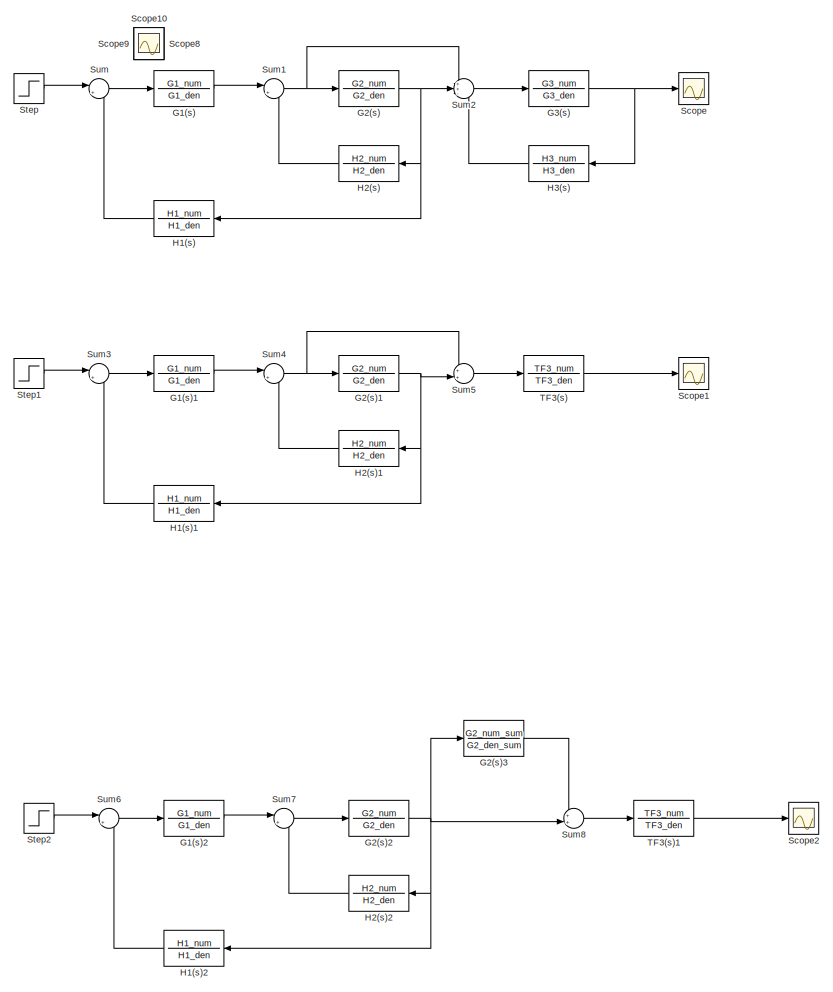
[diagram: root canvas - part 1/2, full width, top band]
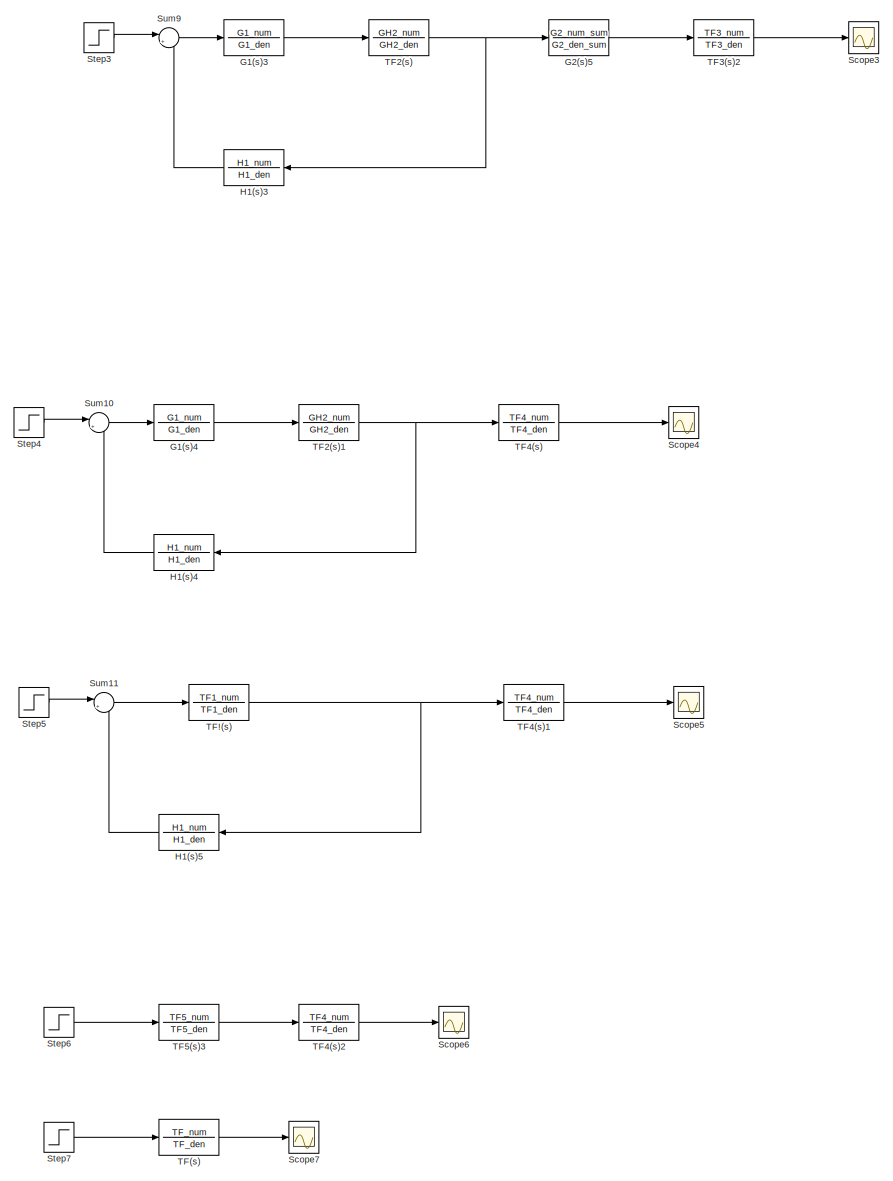
[diagram: root canvas - part 2/2, full width, bottom band]
MODEL slx_843ef36e812e
KIND model
CONFIG AbsTol = auto
CONFIG EnableMultiTasking = off
CONFIG FixedStep = auto
CONFIG MaxStep = auto
CONFIG MinStep = auto
CONFIG RelTol = 1e-3
CONFIG SampleTimeConstraint = Unconstrained
CONFIG SolverName = VariableStepAuto
CONFIG StartTime = 0.0
CONFIG StopTime = 20.0
BLOCK [TransferFcn] G1(s)
  Denominator = G1_den
  Numerator = G1_num
BLOCK [TransferFcn] G1(s)1
  Denominator = G1_den
  Numerator = G1_num
BLOCK [TransferFcn] G1(s)2
  Denominator = G1_den
  Numerator = G1_num
BLOCK [TransferFcn] G1(s)3
  Denominator = G1_den
  Numerator = G1_num
BLOCK [TransferFcn] G1(s)4
  Denominator = G1_den
  Numerator = G1_num
BLOCK [TransferFcn] G2(s)
  Denominator = G2_den
  Numerator = G2_num
BLOCK [TransferFcn] G2(s)1
  Denominator = G2_den
  Numerator = G2_num
BLOCK [TransferFcn] G2(s)2
  Denominator = G2_den
  Numerator = G2_num
BLOCK [TransferFcn] G2(s)3
  Denominator = G2_den_sum
  Numerator = G2_num_sum
BLOCK [TransferFcn] G2(s)5
  Denominator = G2_den_sum
  Numerator = G2_num_sum
BLOCK [TransferFcn] G3(s)
  Denominator = G3_den
  Numerator = G3_num
BLOCK [TransferFcn] H1(s)
  Denominator = H1_den
  Numerator = H1_num
BLOCK [TransferFcn] H1(s)1
  Denominator = H1_den
  Numerator = H1_num
BLOCK [TransferFcn] H1(s)2
  Denominator = H1_den
  Numerator = H1_num
BLOCK [TransferFcn] H1(s)3
  Denominator = H1_den
  Numerator = H1_num
BLOCK [TransferFcn] H1(s)4
  Denominator = H1_den
  Numerator = H1_num
BLOCK [TransferFcn] H1(s)5
  Denominator = H1_den
  Numerator = H1_num
BLOCK [TransferFcn] H2(s)
  Denominator = H2_den
  Numerator = H2_num
BLOCK [TransferFcn] H2(s)1
  Denominator = H2_den
  Numerator = H2_num
BLOCK [TransferFcn] H2(s)2
  Denominator = H2_den
  Numerator = H2_num
BLOCK [TransferFcn] H3(s)
  Denominator = H3_den
  Numerator = H3_num
BLOCK [Scope] Scope
  Floating = off
  NumInputPorts = 1
  ScopeSpecificationString = Simulink.scopes.TimeScopeBlockCfg('CurrentConfiguration', extmgr.ConfigurationSet(extmgr.Configuration('Core','General UI',true),extmgr.Configuration('Core','Source UI',true),extmgr.Configuration('Sources','WiredSimulink',true),extmgr.Configuration('Visuals','Time Domain',true),extmgr.Configuration('Tools','Plot Navigation',true),extmgr.Configuration('Tools','Measurements',true)),'Version','2024a'...<+1ch>
BLOCK [Scope] Scope1
  Floating = off
  NumInputPorts = 1
  ScopeSpecificationString = Simulink.scopes.TimeScopeBlockCfg('CurrentConfiguration', extmgr.ConfigurationSet(extmgr.Configuration('Core','General UI',true),extmgr.Configuration('Core','Source UI',true),extmgr.Configuration('Sources','WiredSimulink',true,'DataLoggingVariableName','ScopeData1'),extmgr.Configuration('Visuals','Time Domain',true),extmgr.Configuration('Tools','Plot Navigation',true),extmgr.Configuration('Tools',...<+40ch>
BLOCK [Scope] Scope10
  Floating = off
  IOType = viewer
  NumInputPorts = 1
  ScopeSpecificationString = Simulink.scopes.TimeScopeBlockCfg('CurrentConfiguration', extmgr.ConfigurationSet(extmgr.Configuration('Core','General UI',true),extmgr.Configuration('Core','Source UI',true),extmgr.Configuration('Sources','WiredSimulink',true,'DataLoggingVariableName','ScopeData10'),extmgr.Configuration('Visuals','Time Domain',true,'SerializedDisplays',{struct('MinYLimReal','-537960889.14463','MaxYLimReal','59773...<+1543ch>
BLOCK [Scope] Scope2
  Floating = off
  NumInputPorts = 1
  ScopeSpecificationString = Simulink.scopes.TimeScopeBlockCfg('CurrentConfiguration', extmgr.ConfigurationSet(extmgr.Configuration('Core','General UI',true),extmgr.Configuration('Core','Source UI',true),extmgr.Configuration('Sources','WiredSimulink',true,'DataLoggingVariableName','ScopeData2'),extmgr.Configuration('Visuals','Time Domain',true),extmgr.Configuration('Tools','Plot Navigation',true),extmgr.Configuration('Tools',...<+40ch>
BLOCK [Scope] Scope3
  Floating = off
  NumInputPorts = 1
  ScopeSpecificationString = Simulink.scopes.TimeScopeBlockCfg('CurrentConfiguration', extmgr.ConfigurationSet(extmgr.Configuration('Core','General UI',true),extmgr.Configuration('Core','Source UI',true),extmgr.Configuration('Sources','WiredSimulink',true,'DataLoggingVariableName','ScopeData3'),extmgr.Configuration('Visuals','Time Domain',true),extmgr.Configuration('Tools','Plot Navigation',true),extmgr.Configuration('Tools',...<+40ch>
BLOCK [Scope] Scope4
  Floating = off
  NumInputPorts = 1
  ScopeSpecificationString = Simulink.scopes.TimeScopeBlockCfg('CurrentConfiguration', extmgr.ConfigurationSet(extmgr.Configuration('Core','General UI',true),extmgr.Configuration('Core','Source UI',true),extmgr.Configuration('Sources','WiredSimulink',true,'DataLoggingVariableName','ScopeData4'),extmgr.Configuration('Visuals','Time Domain',true),extmgr.Configuration('Tools','Plot Navigation',true),extmgr.Configuration('Tools',...<+40ch>
BLOCK [Scope] Scope5
  Floating = off
  NumInputPorts = 1
  ScopeSpecificationString = Simulink.scopes.TimeScopeBlockCfg('CurrentConfiguration', extmgr.ConfigurationSet(extmgr.Configuration('Core','General UI',true),extmgr.Configuration('Core','Source UI',true),extmgr.Configuration('Sources','WiredSimulink',true,'DataLoggingVariableName','ScopeData5'),extmgr.Configuration('Visuals','Time Domain',true),extmgr.Configuration('Tools','Plot Navigation',true),extmgr.Configuration('Tools',...<+40ch>
BLOCK [Scope] Scope6
  Floating = off
  NumInputPorts = 1
  ScopeSpecificationString = Simulink.scopes.TimeScopeBlockCfg('CurrentConfiguration', extmgr.ConfigurationSet(extmgr.Configuration('Core','General UI',true),extmgr.Configuration('Core','Source UI',true),extmgr.Configuration('Sources','WiredSimulink',true,'DataLoggingVariableName','ScopeData6'),extmgr.Configuration('Visuals','Time Domain',true),extmgr.Configuration('Tools','Plot Navigation',true),extmgr.Configuration('Tools',...<+40ch>
BLOCK [Scope] Scope7
  Floating = off
  NumInputPorts = 1
  ScopeSpecificationString = Simulink.scopes.TimeScopeBlockCfg('CurrentConfiguration', extmgr.ConfigurationSet(extmgr.Configuration('Core','General UI',true),extmgr.Configuration('Core','Source UI',true),extmgr.Configuration('Sources','WiredSimulink',true,'DataLoggingVariableName','ScopeData7'),extmgr.Configuration('Visuals','Time Domain',true),extmgr.Configuration('Tools','Plot Navigation',true),extmgr.Configuration('Tools',...<+40ch>
BLOCK [Scope] Scope8
  Floating = off
  IOType = viewer
  NumInputPorts = 1
  ScopeSpecificationString = Simulink.scopes.TimeScopeBlockCfg('CurrentConfiguration', extmgr.ConfigurationSet(extmgr.Configuration('Core','General UI',true),extmgr.Configuration('Core','Source UI',true),extmgr.Configuration('Sources','WiredSimulink',true,'DataLoggingVariableName','ScopeData8'),extmgr.Configuration('Visuals','Time Domain',true,'SerializedDisplays',{struct('MinYLimReal','-537960889.14463','MaxYLimReal','597734...<+1513ch>
BLOCK [Scope] Scope9
  Floating = off
  IOType = viewer
  NumInputPorts = 1
  ScopeSpecificationString = Simulink.scopes.TimeScopeBlockCfg('CurrentConfiguration', extmgr.ConfigurationSet(extmgr.Configuration('Core','General UI',true),extmgr.Configuration('Core','Source UI',true),extmgr.Configuration('Sources','WiredSimulink',true,'DataLoggingVariableName','ScopeData9'),extmgr.Configuration('Visuals','Time Domain',true,'SerializedDisplays',{struct('MinYLimReal','-537960889.14463','MaxYLimReal','597734...<+1568ch>
BLOCK [Step] Step
  SampleTime = 0
BLOCK [Step] Step1
  SampleTime = 0
BLOCK [Step] Step2
  SampleTime = 0
BLOCK [Step] Step3
  SampleTime = 0
BLOCK [Step] Step4
  SampleTime = 0
BLOCK [Step] Step5
  SampleTime = 0
BLOCK [Step] Step6
  SampleTime = 0
BLOCK [Step] Step7
  Before = 0.1
  SampleTime = 0
  Time = 0
BLOCK [Sum] Sum
  Inputs = |+-
BLOCK [Sum] Sum1
  Inputs = |+-
BLOCK [Sum] Sum10
  Inputs = |+-
BLOCK [Sum] Sum11
  Inputs = |+-
BLOCK [Sum] Sum2
  Inputs = ++-
BLOCK [Sum] Sum3
  Inputs = |+-
BLOCK [Sum] Sum4
  Inputs = |+-
BLOCK [Sum] Sum5
  Inputs = ++|
BLOCK [Sum] Sum6
  Inputs = |+-
BLOCK [Sum] Sum7
  Inputs = |+-
BLOCK [Sum] Sum8
  Inputs = ++|
BLOCK [Sum] Sum9
  Inputs = |+-
BLOCK [TransferFcn] TF!(s)
  Denominator = TF1_den
  Numerator = TF1_num
BLOCK [TransferFcn] TF(s)
  Denominator = TF_den
  Numerator = TF_num
BLOCK [TransferFcn] TF2(s)
  Denominator = GH2_den
  Numerator = GH2_num
BLOCK [TransferFcn] TF2(s)1
  Denominator = GH2_den
  Numerator = GH2_num
BLOCK [TransferFcn] TF3(s)
  Denominator = TF3_den
  Numerator = TF3_num
BLOCK [TransferFcn] TF3(s)1
  Denominator = TF3_den
  Numerator = TF3_num
BLOCK [TransferFcn] TF3(s)2
  Denominator = TF3_den
  Numerator = TF3_num
BLOCK [TransferFcn] TF4(s)
  Denominator = TF4_den
  Numerator = TF4_num
BLOCK [TransferFcn] TF4(s)1
  Denominator = TF4_den
  Numerator = TF4_num
BLOCK [TransferFcn] TF4(s)2
  Denominator = TF4_den
  Numerator = TF4_num
BLOCK [TransferFcn] TF5(s)3
  Denominator = TF5_den
  Numerator = TF5_num
LINE G1(s)1:1 -> Sum4:1
LINE G1(s)2:1 -> Sum7:1
LINE G1(s)3:1 -> TF2(s):1
LINE G1(s)4:1 -> TF2(s)1:1
LINE G1(s):1 -> Sum1:1
NET G2(s)1:1 -> H1(s)1:1, H2(s)1:1, Sum5:2
NET G2(s)2:1 -> G2(s)3:1, H1(s)2:1, H2(s)2:1, Sum8:2
LINE G2(s)3:1 -> Sum8:1
LINE G2(s)5:1 -> TF3(s)2:1
NET G2(s):1 -> H1(s):1, H2(s):1, Sum2:2
NET G3(s):1 -> H3(s):1, Scope:1
LINE H1(s)1:1 -> Sum3:2
LINE H1(s)2:1 -> Sum6:2
LINE H1(s)3:1 -> Sum9:2
LINE H1(s)4:1 -> Sum10:2
LINE H1(s)5:1 -> Sum11:2
LINE H1(s):1 -> Sum:2
LINE H2(s)1:1 -> Sum4:2
LINE H2(s)2:1 -> Sum7:2
LINE H2(s):1 -> Sum1:2
LINE H3(s):1 -> Sum2:3
LINE Step1:1 -> Sum3:1
LINE Step2:1 -> Sum6:1
LINE Step3:1 -> Sum9:1
LINE Step4:1 -> Sum10:1
LINE Step5:1 -> Sum11:1
LINE Step6:1 -> TF5(s)3:1
LINE Step7:1 -> TF(s):1
LINE Step:1 -> Sum:1
LINE Sum10:1 -> G1(s)4:1
LINE Sum11:1 -> TF!(s):1
NET Sum1:1 -> G2(s):1, Sum2:1
LINE Sum2:1 -> G3(s):1
LINE Sum3:1 -> G1(s)1:1
NET Sum4:1 -> G2(s)1:1, Sum5:1
LINE Sum5:1 -> TF3(s):1
LINE Sum6:1 -> G1(s)2:1
LINE Sum7:1 -> G2(s)2:1
LINE Sum8:1 -> TF3(s)1:1
LINE Sum9:1 -> G1(s)3:1
LINE Sum:1 -> G1(s):1
NET TF!(s):1 -> H1(s)5:1, TF4(s)1:1
LINE TF(s):1 -> Scope7:1
NET TF2(s)1:1 -> H1(s)4:1, TF4(s):1
NET TF2(s):1 -> G2(s)5:1, H1(s)3:1
LINE TF3(s)1:1 -> Scope2:1
LINE TF3(s)2:1 -> Scope3:1
LINE TF3(s):1 -> Scope1:1
LINE TF4(s)1:1 -> Scope5:1
LINE TF4(s)2:1 -> Scope6:1
LINE TF4(s):1 -> Scope4:1
LINE TF5(s)3:1 -> TF4(s)2:1
note: NET lines group one-source signal fan-out (src -> all destinations, sorted); 1:1 wires keep LINE
